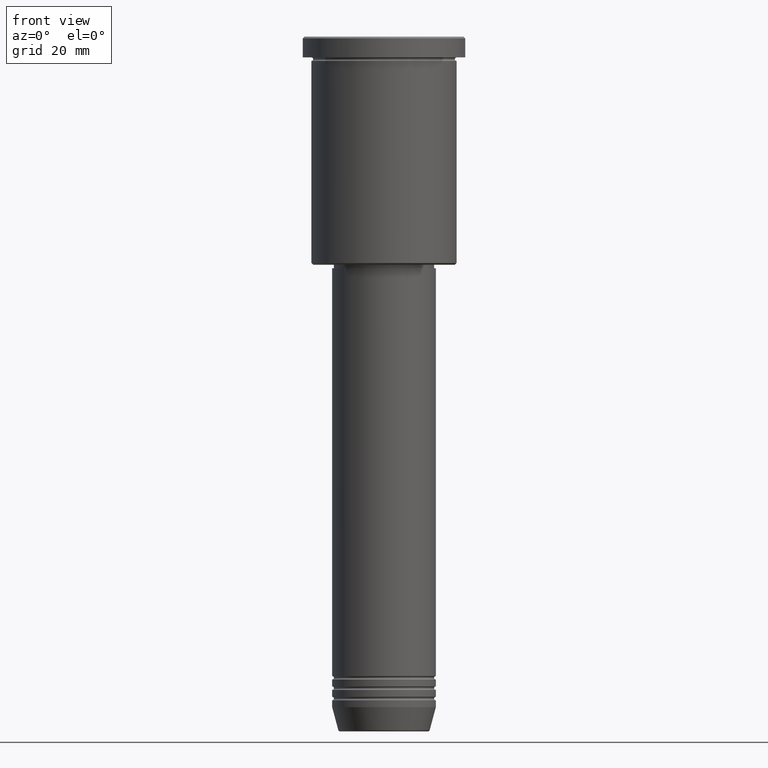
[diagram: clean part render]
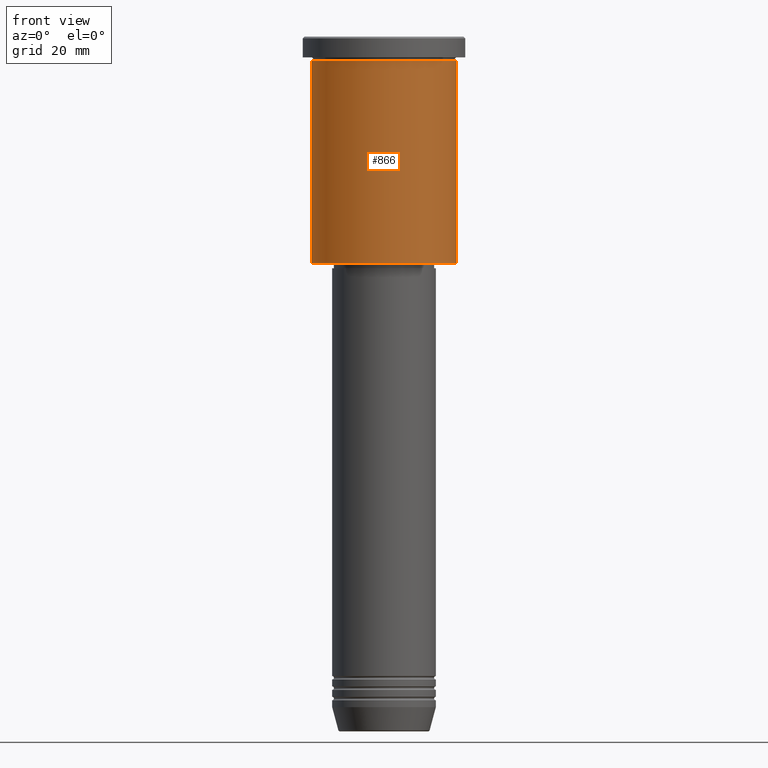
[diagram: same view with one face highlighted and labeled with its STEP entity id]
A machine part, front view. The second image highlights one B-rep face of the part: STEP entity #866.
In plain terms, the highlighted cylindrical surface (partial cylindrical patch) has radius 21 mm, axis along (-0, -0, 1).
Its self-contained STEP definition (entity closure, byte-faithful):
#12 = LINE ( 'NONE', #1097, #946 ) ;
#55 = DIRECTION ( 'NONE',  ( -0.000000000000000000, -0.000000000000000000, 1.000000000000000000 ) ) ;
#214 = AXIS2_PLACEMENT_3D ( 'NONE', #215, #756, #276 ) ;
#215 = CARTESIAN_POINT ( 'NONE',  ( 0.000000000000000000, 0.000000000000000000, -6.999999999999994671 ) ) ;
#228 = DIRECTION ( 'NONE',  ( 1.000000000000000000, 0.000000000000000000, 0.000000000000000000 ) ) ;
#275 = DIRECTION ( 'NONE',  ( -0.000000000000000000, -0.000000000000000000, 1.000000000000000000 ) ) ;
#276 = DIRECTION ( 'NONE',  ( 1.000000000000000000, 0.000000000000000000, 0.000000000000000000 ) ) ;
#288 = CARTESIAN_POINT ( 'NONE',  ( 21.00000000000000000, 0.000000000000000000, -65.49999999999998579 ) ) ;
#297 = VERTEX_POINT ( 'NONE', #288 ) ;
#309 = ORIENTED_EDGE ( 'NONE', *, *, #737, .F. ) ;
#328 = ORIENTED_EDGE ( 'NONE', *, *, #800, .T. ) ;
#338 = ORIENTED_EDGE ( 'NONE', *, *, #1153, .F. ) ;
#345 = CIRCLE ( 'NONE', #214, 21.00000000000000000 ) ;
#482 = DIRECTION ( 'NONE',  ( -0.000000000000000000, -0.000000000000000000, 1.000000000000000000 ) ) ;
#494 = VECTOR ( 'NONE', #482, 1000.000000000000000 ) ;
#539 = CIRCLE ( 'NONE', #944, 21.00000000000000000 ) ;
#582 = CARTESIAN_POINT ( 'NONE',  ( 0.000000000000000000, 0.000000000000000000, -65.49999999999998579 ) ) ;
#585 = FACE_OUTER_BOUND ( 'NONE', #1127, .T. ) ;
#649 = DIRECTION ( 'NONE',  ( -1.000000000000000000, 0.000000000000000000, 0.000000000000000000 ) ) ;
#737 = EDGE_CURVE ( 'NONE', #1060, #1059, #345, .T. ) ;
#756 = DIRECTION ( 'NONE',  ( -0.000000000000000000, -0.000000000000000000, 1.000000000000000000 ) ) ;
#767 = EDGE_CURVE ( 'NONE', #930, #297, #539, .T. ) ;
#770 = CARTESIAN_POINT ( 'NONE',  ( -21.00000000000000000, 2.571758278209441661E-15, -65.49999999999998579 ) ) ;
#800 = EDGE_CURVE ( 'NONE', #297, #1059, #948, .T. ) ;
#809 = CARTESIAN_POINT ( 'NONE',  ( 21.00000000000000000, 0.000000000000000000, -6.999999999999994671 ) ) ;
#866 = ADVANCED_FACE ( 'NONE', ( #585 ), #954, .T. ) ;
#930 = VERTEX_POINT ( 'NONE', #770 ) ;
#944 = AXIS2_PLACEMENT_3D ( 'NONE', #582, #1112, #649 ) ;
#946 = VECTOR ( 'NONE', #275, 1000.000000000000000 ) ;
#948 = LINE ( 'NONE', #1119, #494 ) ;
#954 = CYLINDRICAL_SURFACE ( 'NONE', #1051, 21.00000000000000000 ) ;
#1048 = CARTESIAN_POINT ( 'NONE',  ( 0.000000000000000000, 0.000000000000000000, 0.000000000000000000 ) ) ;
#1051 = AXIS2_PLACEMENT_3D ( 'NONE', #1048, #55, #228 ) ;
#1059 = VERTEX_POINT ( 'NONE', #809 ) ;
#1060 = VERTEX_POINT ( 'NONE', #1077 ) ;
#1077 = CARTESIAN_POINT ( 'NONE',  ( -21.00000000000000000, 2.571758278209441661E-15, -6.999999999999994671 ) ) ;
#1097 = CARTESIAN_POINT ( 'NONE',  ( -21.00000000000000000, 2.571758278209441661E-15, 0.000000000000000000 ) ) ;
#1101 = ORIENTED_EDGE ( 'NONE', *, *, #767, .T. ) ;
#1112 = DIRECTION ( 'NONE',  ( -0.000000000000000000, -0.000000000000000000, 1.000000000000000000 ) ) ;
#1119 = CARTESIAN_POINT ( 'NONE',  ( 21.00000000000000000, 0.000000000000000000, 0.000000000000000000 ) ) ;
#1127 = EDGE_LOOP ( 'NONE', ( #338, #1101, #328, #309 ) ) ;
#1153 = EDGE_CURVE ( 'NONE', #930, #1060, #12, .T. ) ;